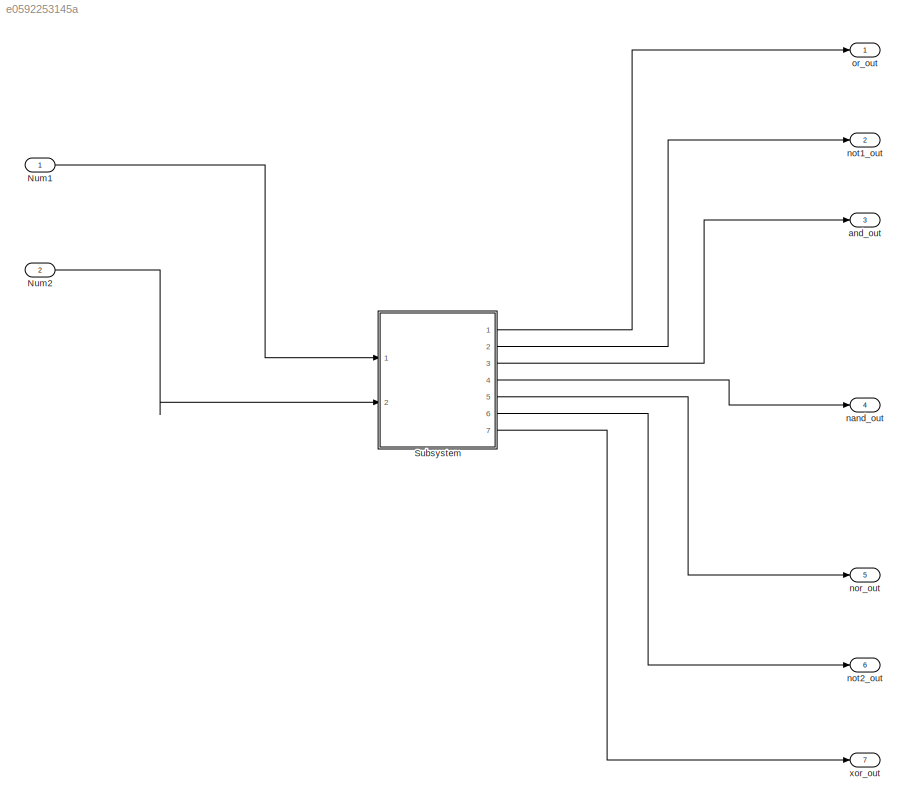
MODEL slx_e0592253145a
KIND model
CONFIG AbsTol = auto
CONFIG EnableMultiTasking = off
CONFIG FixedStep = auto
CONFIG MaxStep = auto
CONFIG MinStep = auto
CONFIG RelTol = 1e-3
CONFIG SampleTimeConstraint = Unconstrained
CONFIG SolverName = VariableStepAuto
CONFIG StartTime = 0.0
CONFIG StopTime = 10.0
BLOCK [Inport] Num1
BLOCK [Inport] Num2
  Port = 2
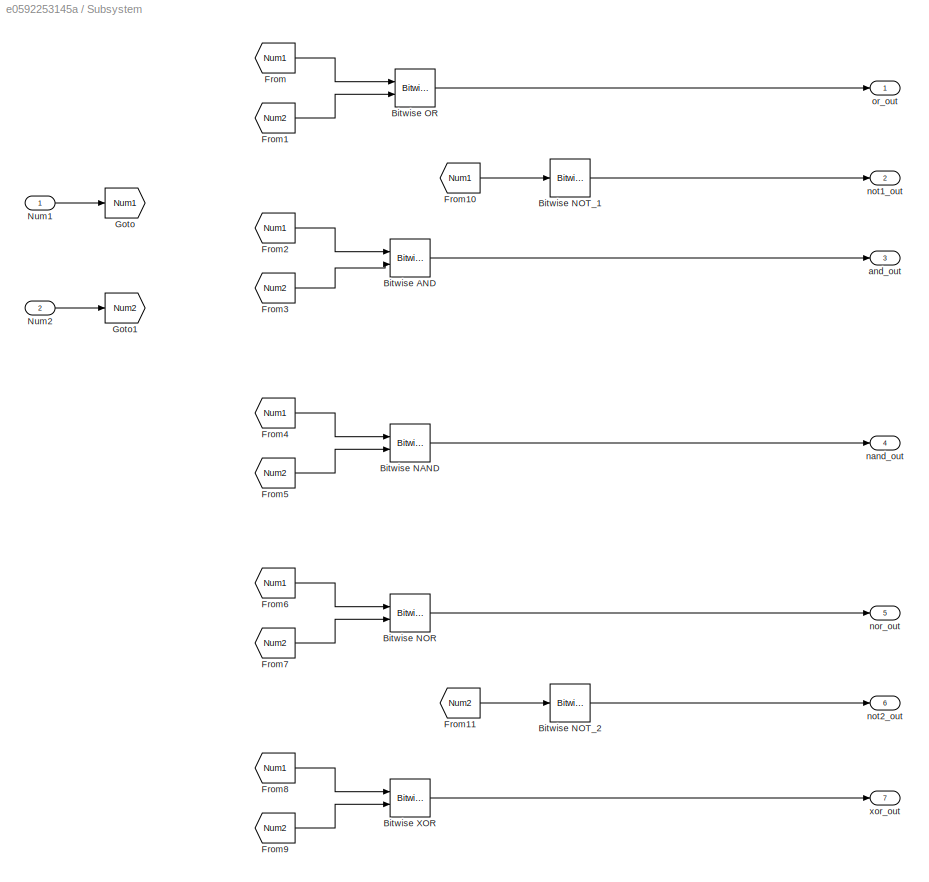
BLOCK [SubSystem] Subsystem
  Ports = [2, 7]
  RequestExecContextInheritance = off
BLOCK [Reference] Subsystem/Bitwise AND  REF=simulink/Logic and Bit
Operations/Bitwise
Operator
  Ports = [2, 1]
  SourceBlock = simulink/Logic and Bit\nOperations/Bitwise\nOperator
  SourceProductBaseCode = SL
  SourceType = Bitwise Operator
BLOCK [Reference] Subsystem/Bitwise NAND  REF=simulink/Logic and Bit
Operations/Bitwise
Operator
  Ports = [2, 1]
  SourceBlock = simulink/Logic and Bit\nOperations/Bitwise\nOperator
  SourceProductBaseCode = SL
  SourceType = Bitwise Operator
BLOCK [Reference] Subsystem/Bitwise NOR  REF=simulink/Logic and Bit
Operations/Bitwise
Operator
  Ports = [2, 1]
  SourceBlock = simulink/Logic and Bit\nOperations/Bitwise\nOperator
  SourceProductBaseCode = SL
  SourceType = Bitwise Operator
BLOCK [Reference] Subsystem/Bitwise NOT_1  REF=simulink/Logic and Bit
Operations/Bitwise
Operator
  Ports = [1, 1]
  SourceBlock = simulink/Logic and Bit\nOperations/Bitwise\nOperator
  SourceProductBaseCode = SL
  SourceType = Bitwise Operator
BLOCK [Reference] Subsystem/Bitwise NOT_2  REF=simulink/Logic and Bit
Operations/Bitwise
Operator
  Ports = [1, 1]
  SourceBlock = simulink/Logic and Bit\nOperations/Bitwise\nOperator
  SourceProductBaseCode = SL
  SourceType = Bitwise Operator
BLOCK [Reference] Subsystem/Bitwise OR  REF=simulink/Logic and Bit
Operations/Bitwise
Operator
  Ports = [2, 1]
  SourceBlock = simulink/Logic and Bit\nOperations/Bitwise\nOperator
  SourceProductBaseCode = SL
  SourceType = Bitwise Operator
BLOCK [Reference] Subsystem/Bitwise XOR  REF=simulink/Logic and Bit
Operations/Bitwise
Operator
  Ports = [2, 1]
  SourceBlock = simulink/Logic and Bit\nOperations/Bitwise\nOperator
  SourceProductBaseCode = SL
  SourceType = Bitwise Operator
BLOCK [From] Subsystem/From
  GotoTag = Num1
BLOCK [From] Subsystem/From1
  GotoTag = Num2
BLOCK [From] Subsystem/From10
  GotoTag = Num1
BLOCK [From] Subsystem/From11
  GotoTag = Num2
BLOCK [From] Subsystem/From2
  GotoTag = Num1
BLOCK [From] Subsystem/From3
  GotoTag = Num2
BLOCK [From] Subsystem/From4
  GotoTag = Num1
BLOCK [From] Subsystem/From5
  GotoTag = Num2
BLOCK [From] Subsystem/From6
  GotoTag = Num1
BLOCK [From] Subsystem/From7
  GotoTag = Num2
BLOCK [From] Subsystem/From8
  GotoTag = Num1
BLOCK [From] Subsystem/From9
  GotoTag = Num2
BLOCK [Goto] Subsystem/Goto
  GotoTag = Num1
BLOCK [Goto] Subsystem/Goto1
  GotoTag = Num2
BLOCK [Inport] Subsystem/Num1
  OutDataTypeStr = uint32
BLOCK [Inport] Subsystem/Num2
  OutDataTypeStr = uint32
  Port = 2
BLOCK [Outport] Subsystem/and_out
  Port = 3
BLOCK [Outport] Subsystem/nand_out
  Port = 4
BLOCK [Outport] Subsystem/nor_out
  Port = 5
BLOCK [Outport] Subsystem/not1_out
  Port = 2
BLOCK [Outport] Subsystem/not2_out
  Port = 6
BLOCK [Outport] Subsystem/or_out
BLOCK [Outport] Subsystem/xor_out
  Port = 7
BLOCK [Outport] and_out
  Port = 3
BLOCK [Outport] nand_out
  Port = 4
BLOCK [Outport] nor_out
  Port = 5
BLOCK [Outport] not1_out
  Port = 2
BLOCK [Outport] not2_out
  Port = 6
BLOCK [Outport] or_out
BLOCK [Outport] xor_out
  Port = 7
LINE Num1:1 -> Subsystem:1
LINE Num2:1 -> Subsystem:2
LINE Subsystem/Bitwise AND:1 -> Subsystem/and_out:1
LINE Subsystem/Bitwise NAND:1 -> Subsystem/nand_out:1
LINE Subsystem/Bitwise NOR:1 -> Subsystem/nor_out:1
LINE Subsystem/Bitwise NOT_1:1 -> Subsystem/not1_out:1
LINE Subsystem/Bitwise NOT_2:1 -> Subsystem/not2_out:1
LINE Subsystem/Bitwise OR:1 -> Subsystem/or_out:1
LINE Subsystem/Bitwise XOR:1 -> Subsystem/xor_out:1
LINE Subsystem/From10:1 -> Subsystem/Bitwise NOT_1:1
LINE Subsystem/From11:1 -> Subsystem/Bitwise NOT_2:1
LINE Subsystem/From1:1 -> Subsystem/Bitwise OR:2
LINE Subsystem/From2:1 -> Subsystem/Bitwise AND:1
LINE Subsystem/From3:1 -> Subsystem/Bitwise AND:2
LINE Subsystem/From4:1 -> Subsystem/Bitwise NAND:1
LINE Subsystem/From5:1 -> Subsystem/Bitwise NAND:2
LINE Subsystem/From6:1 -> Subsystem/Bitwise NOR:1
LINE Subsystem/From7:1 -> Subsystem/Bitwise NOR:2
LINE Subsystem/From8:1 -> Subsystem/Bitwise XOR:1
LINE Subsystem/From9:1 -> Subsystem/Bitwise XOR:2
LINE Subsystem/From:1 -> Subsystem/Bitwise OR:1
LINE Subsystem/Num1:1 -> Subsystem/Goto:1
LINE Subsystem/Num2:1 -> Subsystem/Goto1:1
LINE Subsystem:1 -> or_out:1
LINE Subsystem:2 -> not1_out:1
LINE Subsystem:3 -> and_out:1
LINE Subsystem:4 -> nand_out:1
LINE Subsystem:5 -> nor_out:1
LINE Subsystem:6 -> not2_out:1
LINE Subsystem:7 -> xor_out:1
